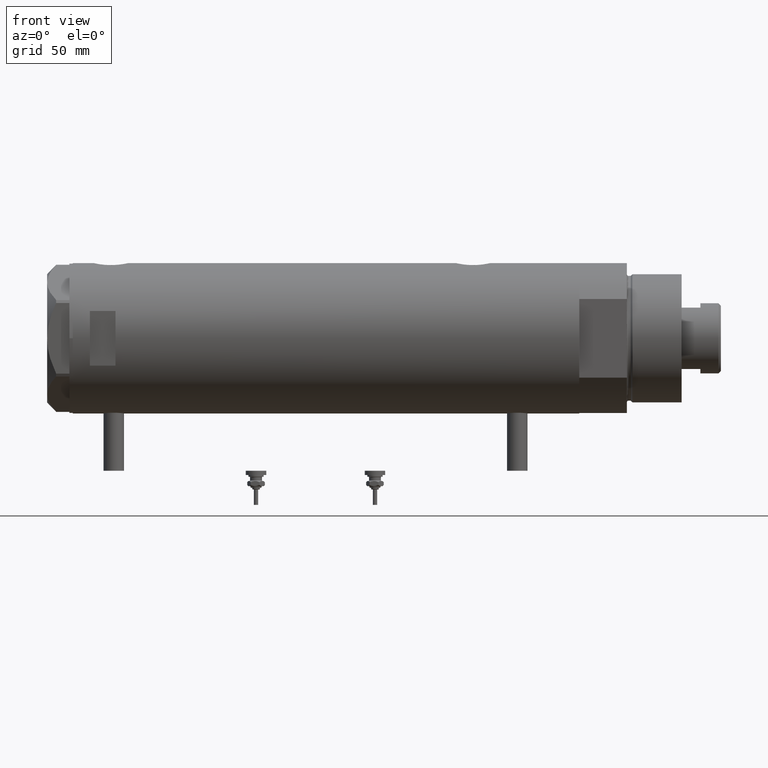
[diagram: clean part render]
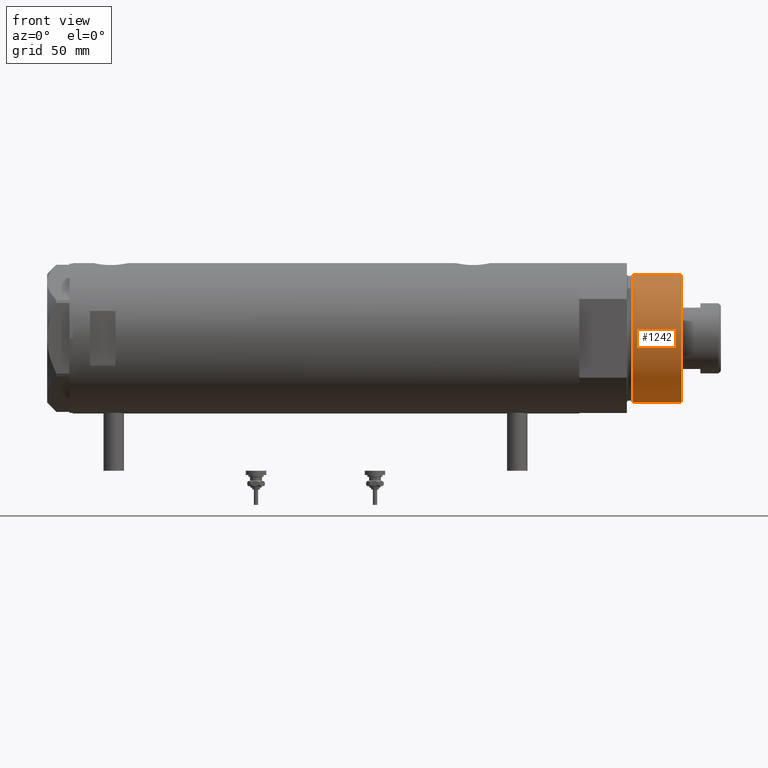
[diagram: same view with one face highlighted and labeled with its STEP entity id]
A machine part, front view. The second image highlights one B-rep face of the part: STEP entity #1242.
In plain terms, the highlighted cylindrical surface (partial cylindrical patch) has radius 37.5 mm, axis along (-1, -0, 0).
Its self-contained STEP definition (entity closure, byte-faithful):
#79 = CARTESIAN_POINT ( 'NONE',  ( -37.50000000000000711, 0.000000000000000000, 59.89999999999999147 ) ) ;
#369 = VERTEX_POINT ( 'NONE', #4034 ) ;
#450 = LINE ( 'NONE', #1306, #5852 ) ;
#642 = VECTOR ( 'NONE', #1497, 1000.000000000000000 ) ;
#896 = DIRECTION ( 'NONE',  ( -0.000000000000000000, -0.000000000000000000, -1.000000000000000000 ) ) ;
#1080 = ORIENTED_EDGE ( 'NONE', *, *, #5350, .T. ) ;
#1242 = ADVANCED_FACE ( 'NONE', ( #3221 ), #1856, .T. ) ;
#1280 = EDGE_CURVE ( 'NONE', #5240, #1915, #1451, .T. ) ;
#1306 = CARTESIAN_POINT ( 'NONE',  ( 37.50000000000000711, 4.592425496802575156E-15, 59.89999999999999147 ) ) ;
#1451 = CIRCLE ( 'NONE', #3853, 37.50000000000000711 ) ;
#1469 = DIRECTION ( 'NONE',  ( 0.000000000000000000, 0.000000000000000000, 1.000000000000000000 ) ) ;
#1497 = DIRECTION ( 'NONE',  ( -0.000000000000000000, -0.000000000000000000, -1.000000000000000000 ) ) ;
#1856 = CYLINDRICAL_SURFACE ( 'NONE', #3958, 37.50000000000000711 ) ;
#1915 = VERTEX_POINT ( 'NONE', #5322 ) ;
#1979 = CARTESIAN_POINT ( 'NONE',  ( 0.000000000000000000, 0.000000000000000000, 31.27384048104054415 ) ) ;
#2041 = ORIENTED_EDGE ( 'NONE', *, *, #1280, .T. ) ;
#2280 = EDGE_CURVE ( 'NONE', #5121, #369, #5562, .T. ) ;
#2795 = DIRECTION ( 'NONE',  ( -1.000000000000000000, 0.000000000000000000, 0.000000000000000000 ) ) ;
#2902 = AXIS2_PLACEMENT_3D ( 'NONE', #5647, #1469, #3316 ) ;
#3221 = FACE_OUTER_BOUND ( 'NONE', #3775, .T. ) ;
#3316 = DIRECTION ( 'NONE',  ( 1.000000000000000000, 0.000000000000000000, 0.000000000000000000 ) ) ;
#3320 = CARTESIAN_POINT ( 'NONE',  ( -37.50000000000000711, 0.000000000000000000, 31.27384048104054415 ) ) ;
#3405 = DIRECTION ( 'NONE',  ( -0.000000000000000000, -0.000000000000000000, 1.000000000000000000 ) ) ;
#3574 = EDGE_CURVE ( 'NONE', #369, #1915, #450, .T. ) ;
#3775 = EDGE_LOOP ( 'NONE', ( #5899, #5456, #1080, #2041 ) ) ;
#3853 = AXIS2_PLACEMENT_3D ( 'NONE', #1979, #3405, #4321 ) ;
#3958 = AXIS2_PLACEMENT_3D ( 'NONE', #4665, #896, #2795 ) ;
#4034 = CARTESIAN_POINT ( 'NONE',  ( 37.50000000000000711, 4.592425496802575156E-15, 59.89999999999999147 ) ) ;
#4228 = LINE ( 'NONE', #79, #642 ) ;
#4321 = DIRECTION ( 'NONE',  ( 1.000000000000000000, 0.000000000000000000, 0.000000000000000000 ) ) ;
#4665 = CARTESIAN_POINT ( 'NONE',  ( 0.000000000000000000, 0.000000000000000000, 59.89999999999999147 ) ) ;
#5121 = VERTEX_POINT ( 'NONE', #5453 ) ;
#5240 = VERTEX_POINT ( 'NONE', #3320 ) ;
#5322 = CARTESIAN_POINT ( 'NONE',  ( 37.50000000000000711, 4.592425496802575156E-15, 31.27384048104054415 ) ) ;
#5350 = EDGE_CURVE ( 'NONE', #5121, #5240, #4228, .T. ) ;
#5453 = CARTESIAN_POINT ( 'NONE',  ( -37.50000000000000711, 0.000000000000000000, 59.89999999999999147 ) ) ;
#5456 = ORIENTED_EDGE ( 'NONE', *, *, #2280, .F. ) ;
#5457 = DIRECTION ( 'NONE',  ( -0.000000000000000000, -0.000000000000000000, -1.000000000000000000 ) ) ;
#5562 = CIRCLE ( 'NONE', #2902, 37.50000000000000711 ) ;
#5647 = CARTESIAN_POINT ( 'NONE',  ( 0.000000000000000000, 0.000000000000000000, 59.89999999999999147 ) ) ;
#5852 = VECTOR ( 'NONE', #5457, 1000.000000000000000 ) ;
#5899 = ORIENTED_EDGE ( 'NONE', *, *, #3574, .F. ) ;